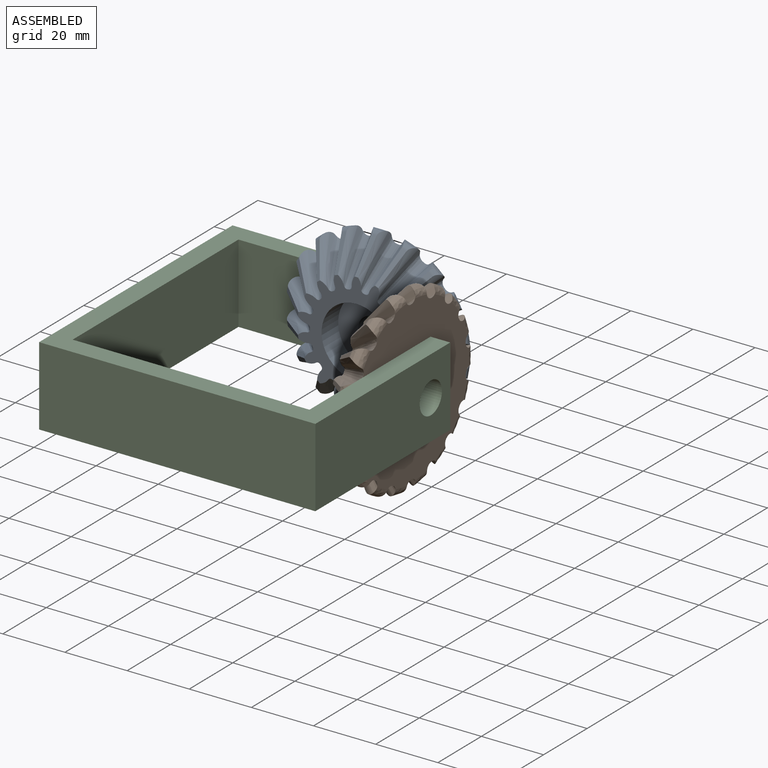
[diagram: assembled view]
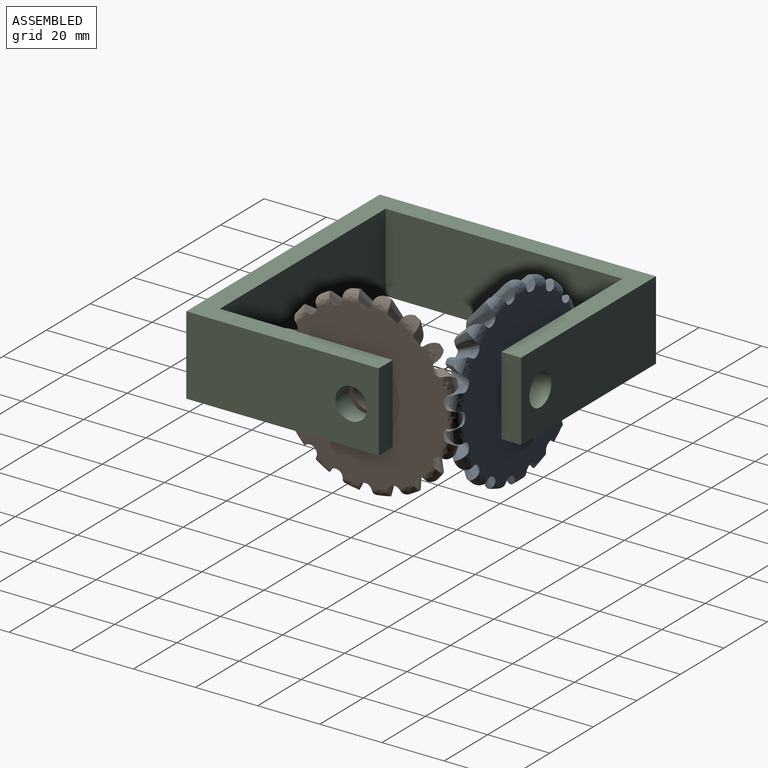
[diagram: assembled view, second angle]
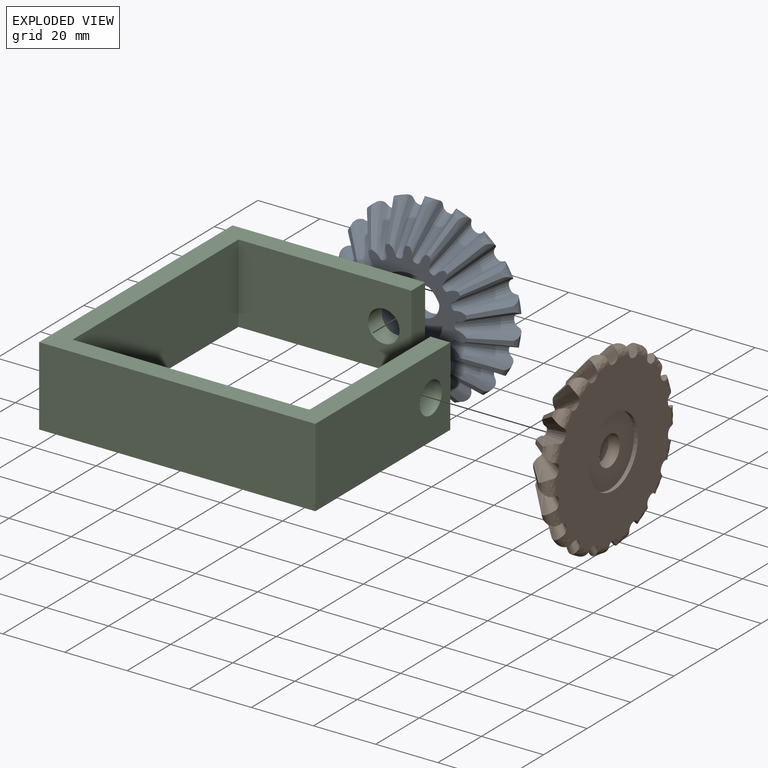
[diagram: exploded view]
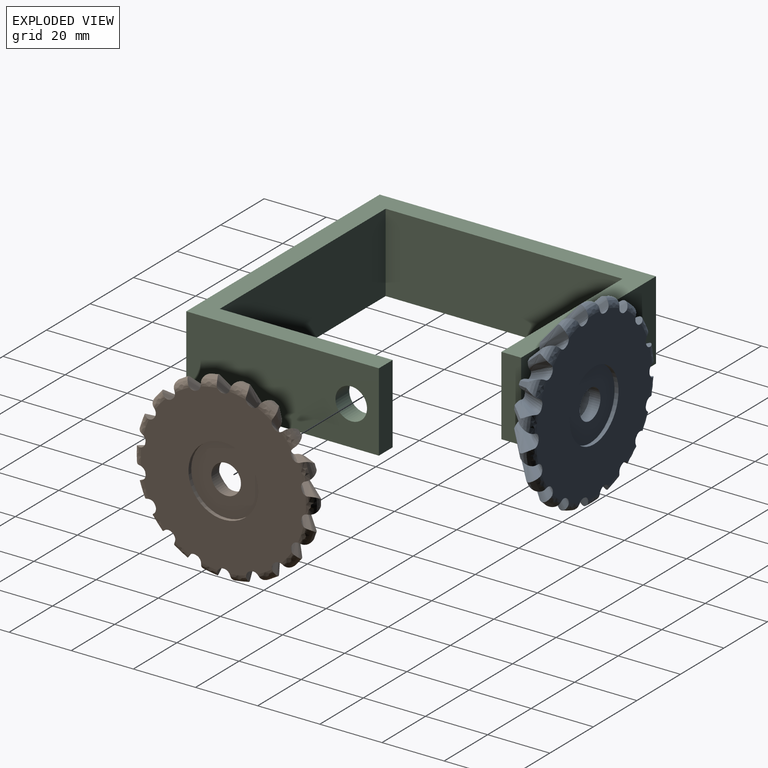
[diagram: exploded view, second angle]
ASSEMBLY  parts=3 mates=2
PART A: 133 faces, bbox 66.8x12.7x66.6 mm
  f0: cylinder r=4.76mm len=9.53mm, axis (0,-1,0), area 107.9mm2, adj f129,f131
  f1: cone r=14.88mm half-angle=40deg, axis (0,1,0), area 10.1mm2, adj f2,f8,f10,f124
  f2: bspline ~12.5x12.39mm, area 30.1mm2, adj f1,f7,f8,f9,f10
  f3: cone r=14.88mm half-angle=40deg, axis (0,1,0), area 10.1mm2, adj f4,f8,f10,f11
  f4: bspline ~12.65x12.52mm, area 30mm2, adj f3,f5,f8,f9,f10
  f5: bspline ~17.54x12.65mm, area 50.6mm2, adj f4,f6,f9,f10
  f6: bspline ~14.42x12.65mm, area 17.3mm2, adj f5,f7,f9,f10
  f7: bspline ~17.53x12.65mm, area 50.8mm2, adj f2,f6,f9,f10
  f8: plane 53.14x53.13mm, normal (0,1,0), area 1767.4mm2, adj f1,f2,f3,f4,f9,f11,f12,f13
  f9: bspline ~8.22x6.85mm, area 23mm2, adj f2,f4,f5,f6,f7,f8
  f10: plane 38.16x37.77mm, normal (0,-1,0), area 513mm2, adj f1,f2,f3,f4,f5,f6,f7,f11
  f11: bspline ~12.5x11.74mm, area 30.1mm2, adj f3,f8,f10,f16,f17
  f12: cone r=14.88mm half-angle=40deg, axis (0,1,0), area 10.1mm2, adj f8,f10,f13,f18
  f13: bspline ~12.65x11.67mm, area 30mm2, adj f8,f10,f12,f14,f17
  f14: bspline ~16.67x12.65mm, area 50.6mm2, adj f10,f13,f15,f17
  f15: bspline ~14.08x12.65mm, area 17.3mm2, adj f10,f14,f16,f17
  f16: bspline ~16.29x12.65mm, area 50.8mm2, adj f10,f11,f15,f17
  f17: bspline ~9.84x9.08mm, area 23mm2, adj f8,f11,f13,f14,f15,f16
  f18: bspline ~12.5x9.79mm, area 30.1mm2, adj f8,f10,f12,f23,f24
  f19: cone r=14.88mm half-angle=40deg, axis (0,1,0), area 10.1mm2, adj f8,f10,f20,f25
  f20: bspline ~12.5x9.33mm, area 30mm2, adj f8,f10,f19,f21,f24
  f21: bspline ~13.8x12.65mm, area 50.6mm2, adj f10,f20,f22,f24
  f22: bspline ~12.65x12.05mm, area 17.3mm2, adj f10,f21,f23,f24
  f23: bspline ~13.08x12.65mm, area 50.8mm2, adj f10,f18,f22,f24
  f24: bspline ~10.47x10.32mm, area 23mm2, adj f8,f18,f20,f21,f22,f23
  f25: bspline ~12.5x10.61mm, area 30.1mm2, adj f8,f10,f19,f30,f31
  f26: cone r=14.88mm half-angle=40deg, axis (0,1,0), area 10.1mm2, adj f8,f10,f27,f32
  f27: bspline ~12.5x10.91mm, area 30mm2, adj f8,f10,f26,f28,f31
  f28: bspline ~14.91x12.65mm, area 50.6mm2, adj f10,f27,f29,f31
  f29: bspline ~13.23x12.65mm, area 17.3mm2, adj f10,f28,f30,f31
  f30: bspline ~15.46x12.65mm, area 50.8mm2, adj f10,f25,f29,f31
  f31: bspline ~10.31x9.85mm, area 23mm2, adj f8,f25,f27,f28,f29,f30
  f32: bspline ~12.65x12.28mm, area 30.1mm2, adj f8,f10,f26,f37,f38
  f33: cone r=14.88mm half-angle=40deg, axis (0,1,0), area 10.1mm2, adj f8,f10,f34,f39
  f34: bspline ~12.65x12.37mm, area 30mm2, adj f8,f10,f33,f35,f38
  f35: bspline ~16.94x12.42mm, area 50.6mm2, adj f10,f34,f36,f38
  f36: bspline ~14.45x12.65mm, area 17.3mm2, adj f10,f35,f37,f38
  f37: bspline ~17.14x12.41mm, area 50.8mm2, adj f10,f32,f36,f38
  f38: bspline ~9.07x8.03mm, area 23mm2, adj f8,f32,f34,f35,f36,f37
  f39: bspline ~12.65x12.38mm, area 30.1mm2, adj f8,f10,f33,f44,f45
  f40: cone r=14.88mm half-angle=40deg, axis (0,1,0), area 10.1mm2, adj f8,f10,f41,f46
  f41: bspline ~12.5x12.16mm, area 30mm2, adj f8,f10,f40,f42,f45
  f42: bspline ~17.37x12.65mm, area 50.6mm2, adj f10,f41,f43,f45
  f43: bspline ~14.46x12.65mm, area 17.3mm2, adj f10,f42,f44,f45
  f44: bspline ~16.94x12.41mm, area 50.8mm2, adj f10,f39,f43,f45
  f45: bspline ~9.06x8.03mm, area 23mm2, adj f8,f39,f41,f42,f43,f44
  f46: bspline ~12.5x10.92mm, area 30.1mm2, adj f8,f10,f40,f51,f52
  f47: cone r=14.88mm half-angle=40deg, axis (0,1,0), area 10.1mm2, adj f8,f10,f48,f53
  f48: bspline ~12.5x10.61mm, area 30mm2, adj f8,f10,f47,f49,f52
  f49: bspline ~15.47x12.65mm, area 50.6mm2, adj f10,f48,f50,f52
  f50: bspline ~8.66x8.05mm, area 17.3mm2, adj f10,f49,f51,f52
  f51: bspline ~14.7x12.41mm, area 50.8mm2, adj f10,f46,f50,f52
  f52: bspline ~10.31x9.85mm, area 23mm2, adj f8,f46,f48,f49,f50,f51
  f53: bspline ~12.65x9.42mm, area 30.1mm2, adj f8,f10,f47,f58,f59
  f54: cone r=14.88mm half-angle=40deg, axis (0,1,0), area 10.1mm2, adj f8,f10,f55,f60
  f55: bspline ~12.5x9.78mm, area 30mm2, adj f8,f10,f54,f56,f59
  f56: bspline ~13.07x12.65mm, area 50.6mm2, adj f10,f55,f57,f59
  f57: bspline ~12.65x12.01mm, area 17.3mm2, adj f10,f56,f58,f59
  f58: bspline ~13.61x12.41mm, area 50.8mm2, adj f10,f53,f57,f59
  f59: bspline ~10.48x10.32mm, area 23mm2, adj f8,f53,f55,f56,f57,f58
  f60: bspline ~12.65x11.67mm, area 30.1mm2, adj f8,f10,f54,f65,f66
  f61: cone r=14.88mm half-angle=40deg, axis (0,1,0), area 10.1mm2, adj f8,f10,f62,f67
  f62: bspline ~12.5x11.74mm, area 30mm2, adj f8,f10,f61,f63,f66
  f63: bspline ~16.29x12.65mm, area 50.6mm2, adj f10,f62,f64,f66
  f64: bspline ~9.09x8.05mm, area 17.3mm2, adj f10,f63,f65,f66
  f65: bspline ~16.45x12.41mm, area 50.8mm2, adj f10,f60,f64,f66
  f66: bspline ~9.84x9.08mm, area 23mm2, adj f8,f60,f62,f63,f64,f65
  f67: bspline ~12.5x12.39mm, area 30.1mm2, adj f8,f10,f61,f72,f73
  f68: cone r=14.88mm half-angle=40deg, axis (0,1,0), area 10.1mm2, adj f8,f10,f69,f74
  f69: bspline ~12.65x12.52mm, area 30mm2, adj f8,f10,f68,f70,f73
  f70: bspline ~17.54x12.65mm, area 50.6mm2, adj f10,f69,f71,f73
  f71: bspline ~14.42x12.65mm, area 17.3mm2, adj f10,f70,f72,f73
  f72: bspline ~17.53x12.65mm, area 50.8mm2, adj f10,f67,f71,f73
  f73: bspline ~8.22x6.85mm, area 23mm2, adj f8,f67,f69,f70,f71,f72
  f74: bspline ~12.5x11.74mm, area 30.1mm2, adj f8,f10,f68,f79,f80
  f75: cone r=14.88mm half-angle=40deg, axis (0,1,0), area 10.1mm2, adj f8,f10,f76,f81
  f76: bspline ~12.65x11.67mm, area 30mm2, adj f8,f10,f75,f77,f80
  f77: bspline ~16.67x12.65mm, area 50.6mm2, adj f10,f76,f78,f80
  f78: bspline ~14.08x12.65mm, area 17.3mm2, adj f10,f77,f79,f80
  f79: bspline ~16.29x12.65mm, area 50.8mm2, adj f10,f74,f78,f80
  f80: bspline ~9.84x9.08mm, area 23mm2, adj f8,f74,f76,f77,f78,f79
  f81: bspline ~12.5x9.79mm, area 30.1mm2, adj f8,f10,f75,f86,f87
  f82: cone r=14.88mm half-angle=40deg, axis (0,1,0), area 10.1mm2, adj f8,f10,f83,f88
  f83: bspline ~12.5x9.33mm, area 30mm2, adj f8,f10,f82,f84,f87
  f84: bspline ~13.8x12.65mm, area 50.6mm2, adj f10,f83,f85,f87
  f85: bspline ~12.65x12.05mm, area 17.3mm2, adj f10,f84,f86,f87
  f86: bspline ~13.08x12.65mm, area 50.8mm2, adj f10,f81,f85,f87
  f87: bspline ~10.47x10.32mm, area 23mm2, adj f8,f81,f83,f84,f85,f86
  f88: bspline ~12.5x10.61mm, area 30.1mm2, adj f8,f10,f82,f93,f94
  f89: cone r=14.88mm half-angle=40deg, axis (0,1,0), area 10.1mm2, adj f8,f10,f90,f95
  f90: bspline ~12.5x10.91mm, area 30mm2, adj f8,f10,f89,f91,f94
  f91: bspline ~14.91x12.65mm, area 50.6mm2, adj f10,f90,f92,f94
  f92: bspline ~13.23x12.65mm, area 17.3mm2, adj f10,f91,f93,f94
  f93: bspline ~15.46x12.65mm, area 50.8mm2, adj f10,f88,f92,f94
  f94: bspline ~10.31x9.85mm, area 23mm2, adj f8,f88,f90,f91,f92,f93
  f95: bspline ~12.65x12.28mm, area 30.1mm2, adj f8,f10,f89,f100,f101
  f96: cone r=14.88mm half-angle=40deg, axis (0,1,0), area 10.1mm2, adj f8,f10,f97,f102
  f97: bspline ~12.65x12.37mm, area 30mm2, adj f8,f10,f96,f98,f101
  f98: bspline ~16.94x12.42mm, area 50.6mm2, adj f10,f97,f99,f101
  f99: bspline ~14.45x12.65mm, area 17.3mm2, adj f10,f98,f100,f101
  f100: bspline ~17.14x12.41mm, area 50.8mm2, adj f10,f95,f99,f101
  f101: bspline ~9.07x8.03mm, area 23mm2, adj f8,f95,f97,f98,f99,f100
  f102: bspline ~12.65x12.38mm, area 30.1mm2, adj f8,f10,f96,f107,f108
  f103: cone r=14.88mm half-angle=40deg, axis (0,1,0), area 10.1mm2, adj f8,f10,f104,f109
  f104: bspline ~12.5x12.16mm, area 30mm2, adj f8,f10,f103,f105,f108
  f105: bspline ~17.37x12.65mm, area 50.6mm2, adj f10,f104,f106,f108
  f106: bspline ~14.46x12.65mm, area 17.3mm2, adj f10,f105,f107,f108
  f107: bspline ~16.94x12.41mm, area 50.8mm2, adj f10,f102,f106,f108
  f108: bspline ~9.06x8.03mm, area 23mm2, adj f8,f102,f104,f105,f106,f107
  f109: bspline ~12.5x10.92mm, area 30.1mm2, adj f8,f10,f103,f114,f115
  f110: cone r=14.88mm half-angle=40deg, axis (0,1,0), area 10.1mm2, adj f8,f10,f111,f116
  f111: bspline ~12.5x10.61mm, area 30mm2, adj f8,f10,f110,f112,f115
  f112: bspline ~15.47x12.65mm, area 50.6mm2, adj f10,f111,f113,f115
  f113: bspline ~8.66x8.05mm, area 17.3mm2, adj f10,f112,f114,f115
  f114: bspline ~14.7x12.41mm, area 50.8mm2, adj f10,f109,f113,f115
  f115: bspline ~10.31x9.85mm, area 23mm2, adj f8,f109,f111,f112,f113,f114
  f116: bspline ~12.65x9.42mm, area 30.1mm2, adj f8,f10,f110,f121,f122
  f117: cone r=14.88mm half-angle=40deg, axis (0,1,0), area 10.1mm2, adj f8,f10,f118,f123
  f118: bspline ~12.5x9.78mm, area 30mm2, adj f8,f10,f117,f119,f122
  f119: bspline ~13.07x12.65mm, area 50.6mm2, adj f10,f118,f120,f122
  f120: bspline ~12.65x12.01mm, area 17.3mm2, adj f10,f119,f121,f122
  f121: bspline ~13.61x12.41mm, area 50.8mm2, adj f10,f116,f120,f122
  f122: bspline ~10.48x10.32mm, area 23mm2, adj f8,f116,f118,f119,f120,f121
  f123: bspline ~12.65x11.67mm, area 30.1mm2, adj f8,f10,f117,f127,f128
  f124: bspline ~12.5x11.74mm, area 30mm2, adj f1,f8,f10,f125,f128
  f125: bspline ~16.29x12.65mm, area 50.6mm2, adj f10,f124,f126,f128
  f126: bspline ~9.09x8.05mm, area 17.3mm2, adj f10,f125,f127,f128
  f127: bspline ~16.45x12.41mm, area 50.8mm2, adj f10,f123,f126,f128
  f128: bspline ~9.84x9.08mm, area 23mm2, adj f8,f123,f124,f125,f126,f127
  f129: plane 22.48x22.48mm, normal (0,-1,0), area 325.6mm2, adj f0,f130
  f130: cylinder r=11.24mm len=22.48mm, axis (0,-1,0), area 538.1mm2, adj f10,f129
  f131: plane 22.48x22.48mm, normal (0,1,0), area 325.6mm2, adj f0,f132
  f132: cylinder r=11.24mm len=22.48mm, axis (0,1,0), area 89.7mm2, adj f8,f131
PART B: same geometry as A
PART C: 14 faces, bbox 88.9x88.9x25.4 mm
  f0: plane 61.98x25.4mm, normal (0,1,0), area 1493.1mm2, adj f1,f9,f10,f11,f12
  f1: plane 88.9x25.4mm, normal (-1,0,0), area 2258.1mm2, adj f0,f2,f10,f11
  f2: plane 88.9x25.4mm, normal (0,-1,0), area 2258.1mm2, adj f1,f3,f10,f11
  f3: plane 61.98x25.4mm, normal (1,0,0), area 1493.1mm2, adj f2,f4,f10,f11,f13
  f4: plane 25.4x6.35mm, normal (0,1,0), area 161.3mm2, adj f3,f5,f10,f11
  f5: plane 55.63x25.4mm, normal (-1,0,0), area 1331.8mm2, adj f4,f6,f10,f11,f13
  f6: plane 76.2x25.4mm, normal (0,1,0), area 1935.5mm2, adj f5,f7,f10,f11
  f7: plane 76.2x25.4mm, normal (1,0,0), area 1935.5mm2, adj f6,f8,f10,f11
  f8: plane 55.63x25.4mm, normal (0,-1,0), area 1331.8mm2, adj f7,f9,f10,f11,f12
  f9: plane 25.4x6.35mm, normal (1,0,0), area 161.3mm2, adj f0,f8,f10,f11
  f10: plane 88.9x88.9mm, normal (0,0,1), area 1795.2mm2, adj f0,f1,f2,f3,f4,f5,f6,f7
  f11: plane 88.9x88.9mm, normal (0,0,-1), area 1795.2mm2, adj f0,f1,f2,f3,f4,f5,f6,f7
  f12: cylinder r=5.08mm len=10.16mm, axis (0,-1,0), area 202.7mm2, adj f0,f8
  f13: cylinder r=5.08mm len=10.16mm, axis (-1,0,0), area 202.7mm2, adj f3,f5
PLACE A t=(-29.46,-12.7,12.7)mm
PLACE B rot(axis=(0.09,0.09,-0.99),90.4deg) t=(-12.7,-29.46,12.7)mm
PLACE C at identity fixed
MATE revolute C.f12 <-> A.f12  axis (0,-1,0) through (-29.46,0,12.7)mm
MATE revolute C.f13 <-> B.f12  axis (-1,0,0) through (0,-29.46,12.7)mm
